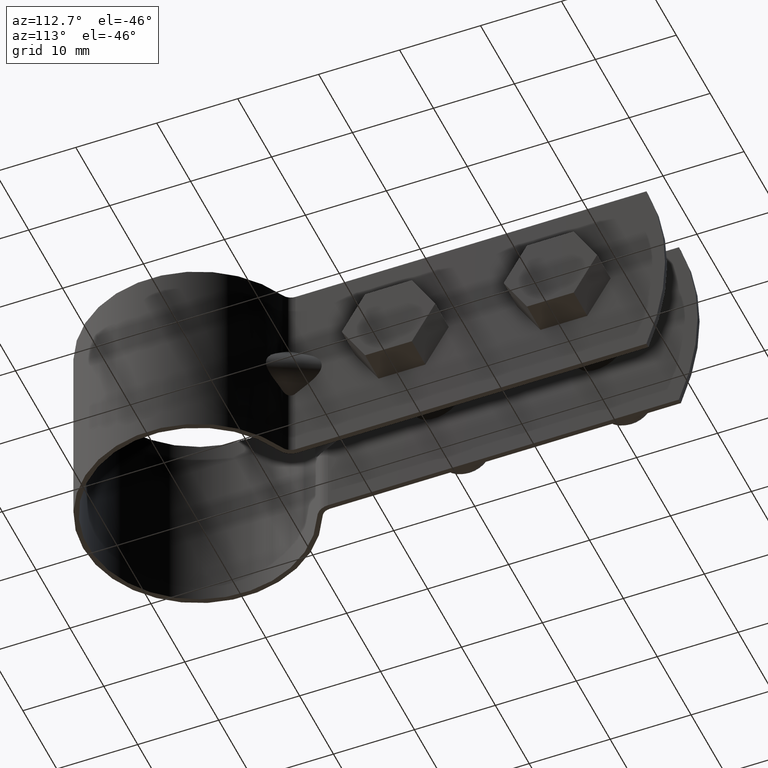
[diagram: clean part render]
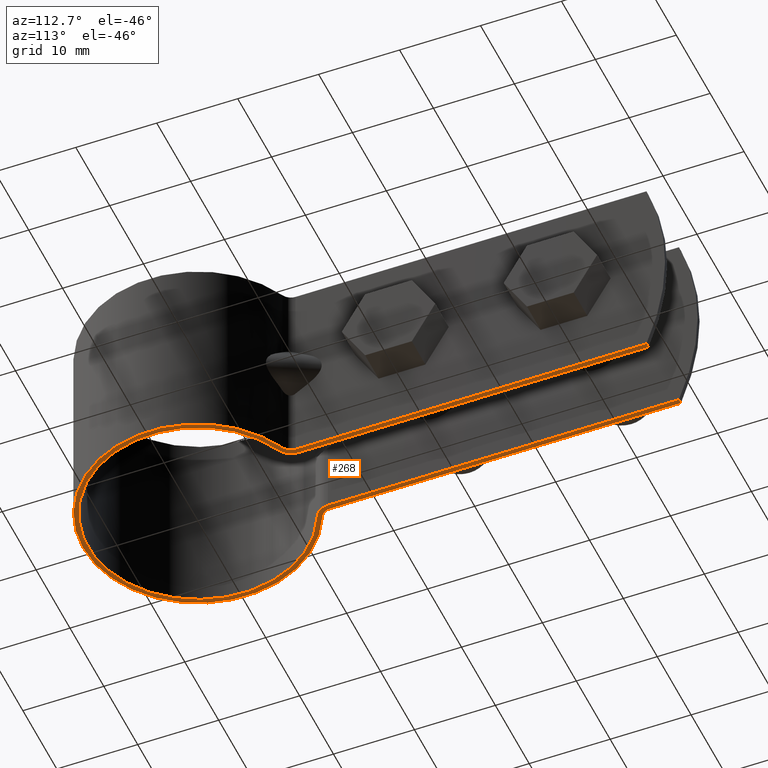
[diagram: same view with one face highlighted and labeled with its STEP entity id]
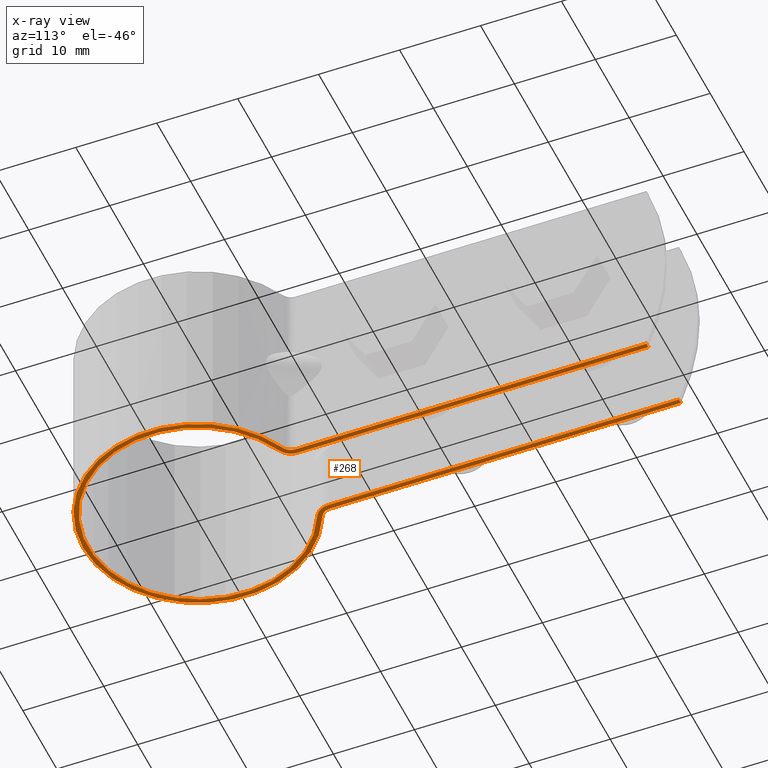
[diagram: x-ray of the same camera — body ghosted, the highlighted face saturated]
A machine part, auxiliary view. The second image highlights one B-rep face of the part: STEP entity #268.
The next image is the same camera in x-ray: the body ghosted, the highlighted face saturated — about 0% of this face is hidden behind the body in this view.
In plain terms, the highlighted planar face has unit normal (0, 0, -1).
Its self-contained STEP definition (entity closure, byte-faithful):
#268 = ADVANCED_FACE( '', ( #372 ), #373, .T. );
#372 = FACE_OUTER_BOUND( '', #604, .T. );
#373 = PLANE( '', #605 );
#604 = EDGE_LOOP( '', ( #841, #842, #843, #844, #845, #846, #847, #848, #849, #850, #851, #852 ) );
#605 = AXIS2_PLACEMENT_3D( '', #853, #854, #855 );
#841 = ORIENTED_EDGE( '', *, *, #1620, .F. );
#842 = ORIENTED_EDGE( '', *, *, #1621, .F. );
#843 = ORIENTED_EDGE( '', *, *, #1622, .F. );
#844 = ORIENTED_EDGE( '', *, *, #1623, .F. );
#845 = ORIENTED_EDGE( '', *, *, #1624, .F. );
#846 = ORIENTED_EDGE( '', *, *, #1625, .F. );
#847 = ORIENTED_EDGE( '', *, *, #1626, .F. );
#848 = ORIENTED_EDGE( '', *, *, #1627, .T. );
#849 = ORIENTED_EDGE( '', *, *, #1628, .T. );
#850 = ORIENTED_EDGE( '', *, *, #1629, .T. );
#851 = ORIENTED_EDGE( '', *, *, #1618, .T. );
#852 = ORIENTED_EDGE( '', *, *, #1630, .T. );
#853 = CARTESIAN_POINT( '', ( 4.50000000000000, 14.1813257490264, -12.5000000000000 ) );
#854 = DIRECTION( '', ( 0.000000000000000, 0.000000000000000, -1.00000000000000 ) );
#855 = DIRECTION( '', ( 6.06692130572647E-017, 1.00000000000000, 0.000000000000000 ) );
#1618 = EDGE_CURVE( '', #1859, #1857, #1860, .T. );
#1620 = EDGE_CURVE( '', #1862, #1863, #1864, .F. );
#1621 = EDGE_CURVE( '', #1865, #1862, #1866, .T. );
#1622 = EDGE_CURVE( '', #1867, #1865, #1868, .F. );
#1623 = EDGE_CURVE( '', #1869, #1867, #1870, .T. );
#1624 = EDGE_CURVE( '', #1871, #1869, #1872, .F. );
#1625 = EDGE_CURVE( '', #1873, #1871, #1874, .T. );
#1626 = EDGE_CURVE( '', #1875, #1873, #1876, .F. );
#1627 = EDGE_CURVE( '', #1875, #1877, #1878, .T. );
#1628 = EDGE_CURVE( '', #1877, #1879, #1880, .T. );
#1629 = EDGE_CURVE( '', #1879, #1859, #1881, .T. );
#1630 = EDGE_CURVE( '', #1857, #1863, #1882, .T. );
#1857 = VERTEX_POINT( '', #2257 );
#1859 = VERTEX_POINT( '', #2260 );
#1860 = CIRCLE( '', #2261, 2.00000000000000 );
#1862 = VERTEX_POINT( '', #2264 );
#1863 = VERTEX_POINT( '', #2265 );
#1864 = LINE( '', #2266, #2267 );
#1865 = VERTEX_POINT( '', #2268 );
#1866 = LINE( '', #2269, #2270 );
#1867 = VERTEX_POINT( '', #2271 );
#1868 = CIRCLE( '', #2272, 1.40000000000000 );
#1869 = VERTEX_POINT( '', #2273 );
#1870 = CIRCLE( '', #2274, 14.2000000000000 );
#1871 = VERTEX_POINT( '', #2275 );
#1872 = CIRCLE( '', #2276, 1.40000000000000 );
#1873 = VERTEX_POINT( '', #2277 );
#1874 = LINE( '', #2278, #2279 );
#1875 = VERTEX_POINT( '', #2280 );
#1876 = LINE( '', #2281, #2282 );
#1877 = VERTEX_POINT( '', #2283 );
#1878 = LINE( '', #2284, #2285 );
#1879 = VERTEX_POINT( '', #2286 );
#1880 = CIRCLE( '', #2287, 2.00000000000000 );
#1881 = CIRCLE( '', #2288, 13.6000000000000 );
#1882 = LINE( '', #2289, #2290 );
#2257 = CARTESIAN_POINT( '', ( 4.50000000000000, 14.1813257490264, -12.5000000000000 ) );
#2260 = CARTESIAN_POINT( '', ( 5.66666666666666, 12.3632070632538, -12.5000000000000 ) );
#2261 = AXIS2_PLACEMENT_3D( '', #2962, #2963, #2964 );
#2264 = CARTESIAN_POINT( '', ( 5.10000000000000, 57.5256814561844, -12.5000000000000 ) );
#2265 = CARTESIAN_POINT( '', ( 4.50000000000000, 57.5256814561844, -12.5000000000000 ) );
#2266 = CARTESIAN_POINT( '', ( -62.3322961113466, 57.5256814561844, -12.5000000000000 ) );
#2267 = VECTOR( '', #2966, 1000.00000000000 );
#2268 = CARTESIAN_POINT( '', ( 5.10000000000000, 14.1813257490264, -12.5000000000000 ) );
#2269 = CARTESIAN_POINT( '', ( 5.10000000000000, 14.1813257490264, -12.5000000000000 ) );
#2270 = VECTOR( '', #2967, 1000.00000000000 );
#2271 = CARTESIAN_POINT( '', ( 5.91666666666667, 12.9086426689856, -12.5000000000000 ) );
#2272 = AXIS2_PLACEMENT_3D( '', #2968, #2969, #2970 );
#2273 = CARTESIAN_POINT( '', ( -5.91666666666666, 12.9086426689856, -12.5000000000000 ) );
#2274 = AXIS2_PLACEMENT_3D( '', #2971, #2972, #2973 );
#2275 = CARTESIAN_POINT( '', ( -5.10000000000000, 14.1813257490264, -12.5000000000000 ) );
#2276 = AXIS2_PLACEMENT_3D( '', #2974, #2975, #2976 );
#2277 = CARTESIAN_POINT( '', ( -5.10000000000000, 57.5256814561844, -12.5000000000000 ) );
#2278 = CARTESIAN_POINT( '', ( -5.10000000000000, 59.8339393796293, -12.5000000000000 ) );
#2279 = VECTOR( '', #2977, 1000.00000000000 );
#2280 = CARTESIAN_POINT( '', ( -4.50000000000000, 57.5256814561844, -12.5000000000000 ) );
#2281 = CARTESIAN_POINT( '', ( -62.3322961113466, 57.5256814561844, -12.5000000000000 ) );
#2282 = VECTOR( '', #2978, 1000.00000000000 );
#2283 = CARTESIAN_POINT( '', ( -4.50000000000000, 14.1813257490264, -12.5000000000000 ) );
#2284 = CARTESIAN_POINT( '', ( -4.50000000000000, 59.8339393796293, -12.5000000000000 ) );
#2285 = VECTOR( '', #2979, 1000.00000000000 );
#2286 = CARTESIAN_POINT( '', ( -5.66666666666667, 12.3632070632538, -12.5000000000000 ) );
#2287 = AXIS2_PLACEMENT_3D( '', #2980, #2981, #2982 );
#2288 = AXIS2_PLACEMENT_3D( '', #2983, #2984, #2985 );
#2289 = CARTESIAN_POINT( '', ( 4.50000000000000, 14.1813257490264, -12.5000000000000 ) );
#2290 = VECTOR( '', #2986, 1000.00000000000 );
#2962 = CARTESIAN_POINT( '', ( 6.50000000000000, 14.1813257490264, -12.5000000000000 ) );
#2963 = DIRECTION( '', ( 0.000000000000000, 0.000000000000000, -1.00000000000000 ) );
#2964 = DIRECTION( '', ( -1.00000000000000, 6.06692130572647E-017, 0.000000000000000 ) );
#2966 = DIRECTION( '', ( 1.00000000000000, -6.06692130572647E-017, 0.000000000000000 ) );
#2967 = DIRECTION( '', ( 6.06692130572647E-017, 1.00000000000000, 0.000000000000000 ) );
#2968 = CARTESIAN_POINT( '', ( 6.50000000000000, 14.1813257490264, -12.5000000000000 ) );
#2969 = DIRECTION( '', ( 0.000000000000000, 0.000000000000000, 1.00000000000000 ) );
#2970 = DIRECTION( '', ( 1.00000000000000, 0.000000000000000, 0.000000000000000 ) );
#2971 = CARTESIAN_POINT( '', ( 0.000000000000000, 0.000000000000000, -12.5000000000000 ) );
#2972 = DIRECTION( '', ( 0.000000000000000, 0.000000000000000, 1.00000000000000 ) );
#2973 = DIRECTION( '', ( 1.00000000000000, 0.000000000000000, 0.000000000000000 ) );
#2974 = CARTESIAN_POINT( '', ( -6.50000000000000, 14.1813257490264, -12.5000000000000 ) );
#2975 = DIRECTION( '', ( 0.000000000000000, 0.000000000000000, 1.00000000000000 ) );
#2976 = DIRECTION( '', ( 1.00000000000000, 0.000000000000000, 0.000000000000000 ) );
#2977 = DIRECTION( '', ( -6.06692130572647E-017, -1.00000000000000, 0.000000000000000 ) );
#2978 = DIRECTION( '', ( 1.00000000000000, -6.06692130572647E-017, 0.000000000000000 ) );
#2979 = DIRECTION( '', ( -6.06692130572647E-017, -1.00000000000000, 0.000000000000000 ) );
#2980 = CARTESIAN_POINT( '', ( -6.50000000000000, 14.1813257490264, -12.5000000000000 ) );
#2981 = DIRECTION( '', ( 0.000000000000000, 0.000000000000000, -1.00000000000000 ) );
#2982 = DIRECTION( '', ( 1.00000000000000, -6.06692130572647E-017, 0.000000000000000 ) );
#2983 = CARTESIAN_POINT( '', ( 0.000000000000000, 0.000000000000000, -12.5000000000000 ) );
#2984 = DIRECTION( '', ( 0.000000000000000, 0.000000000000000, 1.00000000000000 ) );
#2985 = DIRECTION( '', ( 1.00000000000000, -6.06692130572647E-017, 0.000000000000000 ) );
#2986 = DIRECTION( '', ( 6.06692130572647E-017, 1.00000000000000, 0.000000000000000 ) );